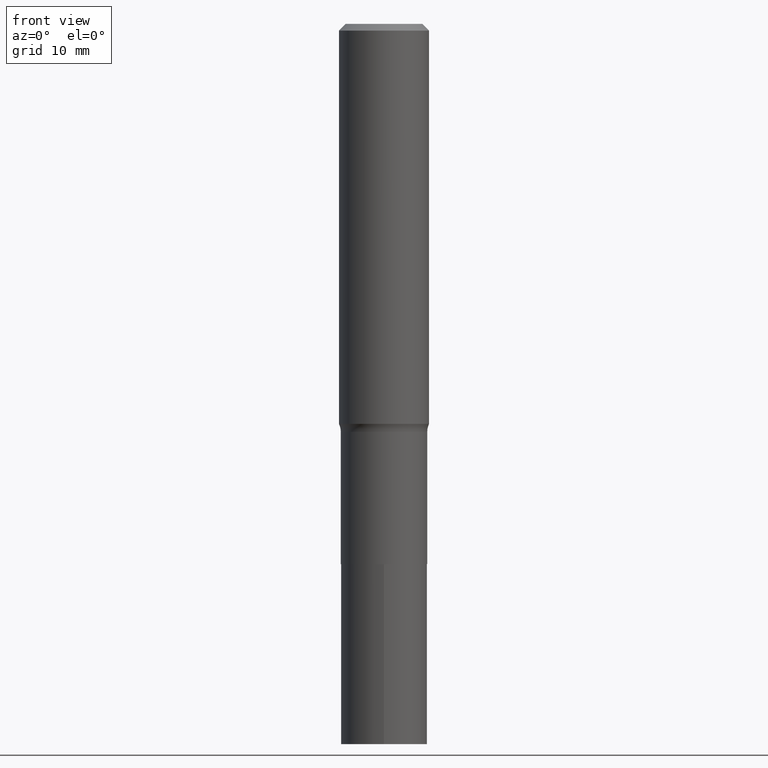
[diagram: clean part render]
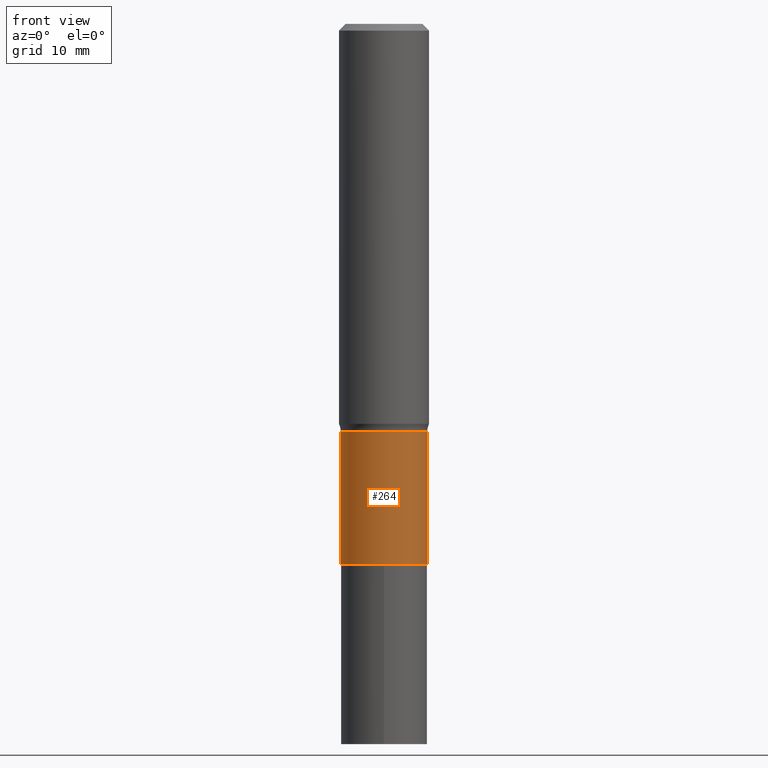
[diagram: same view with one face highlighted and labeled with its STEP entity id]
A machine part, front view. The second image highlights one B-rep face of the part: STEP entity #264.
In plain terms, the highlighted cylindrical surface (partial cylindrical patch) has radius 4.8006 mm, axis along (-0, 0, 1).
Its self-contained STEP definition (entity closure, byte-faithful):
#4 = CARTESIAN_POINT ( 'NONE',  ( -0.1889999999999999458, 1.342925770586588966E-15, -9.296787320581769859E-30 ) ) ;
#28 = CARTESIAN_POINT ( 'NONE',  ( 0.000000000000000000, 0.000000000000000000, 0.000000000000000000 ) ) ;
#31 = ORIENTED_EDGE ( 'NONE', *, *, #434, .T. ) ;
#37 = DIRECTION ( 'NONE',  ( 1.000000000000000000, -6.982962677686266711E-15, 0.000000000000000000 ) ) ;
#84 = DIRECTION ( 'NONE',  ( -2.445468806185136877E-29, 3.491481338843145188E-15, 1.000000000000000000 ) ) ;
#95 = ORIENTED_EDGE ( 'NONE', *, *, #378, .F. ) ;
#123 = DIRECTION ( 'NONE',  ( 1.000000000000000000, -6.982962677686269077E-15, 0.000000000000000000 ) ) ;
#126 = EDGE_CURVE ( 'NONE', #354, #229, #294, .T. ) ;
#130 = EDGE_LOOP ( 'NONE', ( #317, #257, #31, #95 ) ) ;
#137 = FACE_OUTER_BOUND ( 'NONE', #130, .T. ) ;
#167 = VECTOR ( 'NONE', #395, 39.37007874015748143 ) ;
#191 = CARTESIAN_POINT ( 'NONE',  ( -0.1889999999999999736, -5.894915044835252764E-15, -2.362100000000000311 ) ) ;
#202 = CARTESIAN_POINT ( 'NONE',  ( 0.1889999999999999181, -7.548233506444992953E-15, -1.783900000000000263 ) ) ;
#218 = DIRECTION ( 'NONE',  ( -2.445468806185136597E-29, 3.491481338843145583E-15, 1.000000000000000000 ) ) ;
#229 = VERTEX_POINT ( 'NONE', #234 ) ;
#234 = CARTESIAN_POINT ( 'NONE',  ( -0.1889999999999999181, -5.894915044835252764E-15, -1.783900000000000263 ) ) ;
#257 = ORIENTED_EDGE ( 'NONE', *, *, #348, .T. ) ;
#264 = ADVANCED_FACE ( 'NONE', ( #137 ), #359, .T. ) ;
#269 = CARTESIAN_POINT ( 'NONE',  ( 0.1889999999999999458, -1.319779946082704030E-15, 9.215974106254316519E-30 ) ) ;
#273 = AXIS2_PLACEMENT_3D ( 'NONE', #447, #450, #123 ) ;
#282 = CIRCLE ( 'NONE', #426, 0.1889999999999999736 ) ;
#292 = CIRCLE ( 'NONE', #273, 0.1889999999999999181 ) ;
#294 = LINE ( 'NONE', #4, #167 ) ;
#296 = VECTOR ( 'NONE', #84, 39.37007874015748143 ) ;
#310 = VERTEX_POINT ( 'NONE', #391 ) ;
#313 = DIRECTION ( 'NONE',  ( 1.000000000000000000, -6.982962677686266711E-15, 4.876176775795935793E-29 ) ) ;
#317 = ORIENTED_EDGE ( 'NONE', *, *, #126, .F. ) ;
#320 = CARTESIAN_POINT ( 'NONE',  ( 5.776441867089912090E-29, -8.247228070481394537E-15, -2.362100000000000311 ) ) ;
#326 = AXIS2_PLACEMENT_3D ( 'NONE', #28, #457, #313 ) ;
#339 = LINE ( 'NONE', #269, #296 ) ;
#348 = EDGE_CURVE ( 'NONE', #354, #310, #282, .T. ) ;
#354 = VERTEX_POINT ( 'NONE', #191 ) ;
#359 = CYLINDRICAL_SURFACE ( 'NONE', #326, 0.1889999999999999458 ) ;
#373 = VERTEX_POINT ( 'NONE', #202 ) ;
#378 = EDGE_CURVE ( 'NONE', #229, #373, #292, .T. ) ;
#391 = CARTESIAN_POINT ( 'NONE',  ( 0.1889999999999999736, -9.567008016564100144E-15, -2.362100000000000311 ) ) ;
#395 = DIRECTION ( 'NONE',  ( -2.445468806185136877E-29, 3.491481338843145188E-15, 1.000000000000000000 ) ) ;
#426 = AXIS2_PLACEMENT_3D ( 'NONE', #320, #218, #37 ) ;
#434 = EDGE_CURVE ( 'NONE', #310, #373, #339, .T. ) ;
#447 = CARTESIAN_POINT ( 'NONE',  ( 4.362471803353666187E-29, -6.228453560362288135E-15, -1.783900000000000263 ) ) ;
#450 = DIRECTION ( 'NONE',  ( -2.445468806185136597E-29, 3.491481338843145583E-15, 1.000000000000000000 ) ) ;
#457 = DIRECTION ( 'NONE',  ( -2.445468806185136597E-29, 3.491481338843145583E-15, 1.000000000000000000 ) ) ;